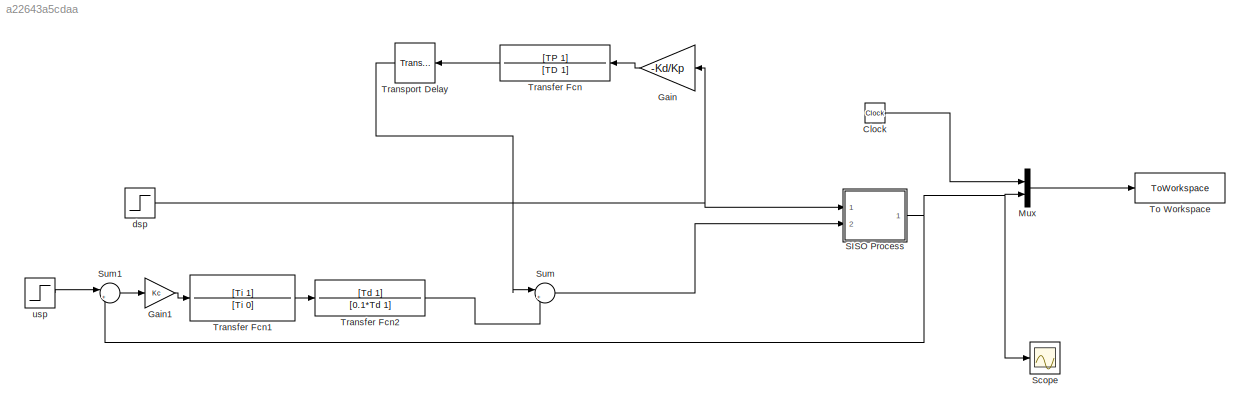
MODEL slx_a22643a5cdaa
KIND model
CONFIG AbsTol = auto
CONFIG EnableMultiTasking = off
CONFIG FixedStep = 0.1
CONFIG MaxStep = auto
CONFIG MinStep = auto
CONFIG RelTol = 1e-3
CONFIG SampleTimeConstraint = Unconstrained
CONFIG SolverName = ode2
CONFIG StartTime = 0.0
CONFIG StopTime = 100
BLOCK [Clock] Clock
BLOCK [Gain] Gain
  Gain = -Kd/Kp
  NameLocation = top
BLOCK [Gain] Gain1
  Gain = Kc
BLOCK [Mux] Mux
  DisplayOption = bar
  Inputs = 2
  Ports = [2, 1]
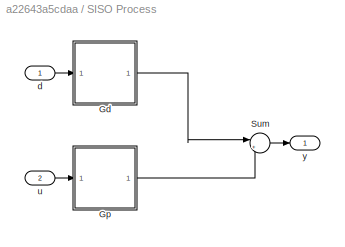
BLOCK [SubSystem] SISO Process
  Ports = [2, 1]
  RequestExecContextInheritance = off
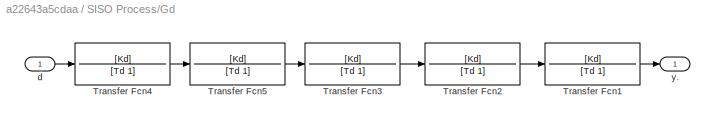
BLOCK [SubSystem] SISO Process/Gd
  Ports = [1, 1]
  RequestExecContextInheritance = off
BLOCK [TransferFcn] SISO Process/Gd/Transfer Fcn1
  Denominator = [Td 1]
  Numerator = [Kd]
BLOCK [TransferFcn] SISO Process/Gd/Transfer Fcn2
  Denominator = [Td 1]
  Numerator = [Kd]
BLOCK [TransferFcn] SISO Process/Gd/Transfer Fcn3
  Denominator = [Td 1]
  Numerator = [Kd]
BLOCK [TransferFcn] SISO Process/Gd/Transfer Fcn4
  Denominator = [Td 1]
  Numerator = [Kd]
BLOCK [TransferFcn] SISO Process/Gd/Transfer Fcn5
  Denominator = [Td 1]
  Numerator = [Kd]
BLOCK [Inport] SISO Process/Gd/d
BLOCK [Outport] SISO Process/Gd/y.
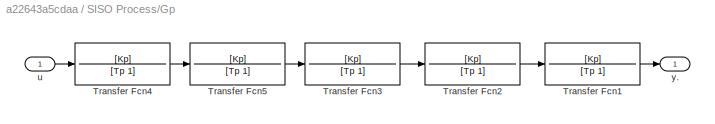
BLOCK [SubSystem] SISO Process/Gp
  Ports = [1, 1]
  RequestExecContextInheritance = off
BLOCK [TransferFcn] SISO Process/Gp/Transfer Fcn1
  Denominator = [Tp 1]
  Numerator = [Kp]
BLOCK [TransferFcn] SISO Process/Gp/Transfer Fcn2
  Denominator = [Tp 1]
  Numerator = [Kp]
BLOCK [TransferFcn] SISO Process/Gp/Transfer Fcn3
  Denominator = [Tp 1]
  Numerator = [Kp]
BLOCK [TransferFcn] SISO Process/Gp/Transfer Fcn4
  Denominator = [Tp 1]
  Numerator = [Kp]
BLOCK [TransferFcn] SISO Process/Gp/Transfer Fcn5
  Denominator = [Tp 1]
  Numerator = [Kp]
BLOCK [Inport] SISO Process/Gp/u
BLOCK [Outport] SISO Process/Gp/y.
BLOCK [Sum] SISO Process/Sum
  Inputs = |++
  Ports = [2, 1]
BLOCK [Inport] SISO Process/d
BLOCK [Inport] SISO Process/u
  Port = 2
BLOCK [Outport] SISO Process/y
BLOCK [Scope] Scope
  Floating = off
  NumInputPorts = 1
  Ports = [1]
  ScopeSpecificationString = Simulink.scopes.TimeScopeBlockCfg('CurrentConfiguration', extmgr.ConfigurationSet(extmgr.Configuration('Core','General UI',true),extmgr.Configuration('Core','Source UI',true),extmgr.Configuration('Sources','WiredSimulink',true),extmgr.Configuration('Visuals','Time Domain',true,'SerializedDisplays',{struct('MinYLimReal','-0.1223','MaxYLimReal','0.06719','YLabelReal','','MinYLimMag','0.00000','MaxYL...<+1328ch>
BLOCK [Sum] Sum
  Inputs = |++
  Ports = [2, 1]
BLOCK [Sum] Sum1
  Inputs = |+-
  Ports = [2, 1]
BLOCK [ToWorkspace] To Workspace
  FixptAsFi = on
  MaxDataPoints = inf
  Ports = [1]
  SampleTime = -1
  VariableName = Y
BLOCK [TransferFcn] Transfer Fcn
  Denominator = [TD 1]
  NameLocation = top
  Numerator = [TP 1]
BLOCK [TransferFcn] Transfer Fcn1
  Denominator = [Ti 0]
  Numerator = [Ti 1]
BLOCK [TransferFcn] Transfer Fcn2
  Denominator = [0.1*Td 1]
  Numerator = [Td 1]
BLOCK [TransportDelay] Transport Delay
  DelayTime = Theta
  NameLocation = top
  Ports = [1, 1]
BLOCK [Step] dsp
  SampleTime = 0
BLOCK [Step] usp
  After = 0
  SampleTime = 0
  Time = 0
LINE Clock:1 -> Mux:1
LINE Gain1:1 -> Transfer Fcn1:1
LINE Gain:1 -> Transfer Fcn:1
LINE Mux:1 -> To Workspace:1
LINE SISO Process/Gd/Transfer Fcn1:1 -> SISO Process/Gd/y.:1
LINE SISO Process/Gd/Transfer Fcn2:1 -> SISO Process/Gd/Transfer Fcn1:1
LINE SISO Process/Gd/Transfer Fcn3:1 -> SISO Process/Gd/Transfer Fcn2:1
LINE SISO Process/Gd/Transfer Fcn4:1 -> SISO Process/Gd/Transfer Fcn5:1
LINE SISO Process/Gd/Transfer Fcn5:1 -> SISO Process/Gd/Transfer Fcn3:1
LINE SISO Process/Gd/d:1 -> SISO Process/Gd/Transfer Fcn4:1
LINE SISO Process/Gd:1 -> SISO Process/Sum:1
LINE SISO Process/Gp/Transfer Fcn1:1 -> SISO Process/Gp/y.:1
LINE SISO Process/Gp/Transfer Fcn2:1 -> SISO Process/Gp/Transfer Fcn1:1
LINE SISO Process/Gp/Transfer Fcn3:1 -> SISO Process/Gp/Transfer Fcn2:1
LINE SISO Process/Gp/Transfer Fcn4:1 -> SISO Process/Gp/Transfer Fcn5:1
LINE SISO Process/Gp/Transfer Fcn5:1 -> SISO Process/Gp/Transfer Fcn3:1
LINE SISO Process/Gp/u:1 -> SISO Process/Gp/Transfer Fcn4:1
LINE SISO Process/Gp:1 -> SISO Process/Sum:2
LINE SISO Process/Sum:1 -> SISO Process/y:1
LINE SISO Process/d:1 -> SISO Process/Gd:1
LINE SISO Process/u:1 -> SISO Process/Gp:1
NET SISO Process:1 -> Mux:2, Scope:1, Sum1:2
LINE Sum1:1 -> Gain1:1
LINE Sum:1 -> SISO Process:2
LINE Transfer Fcn1:1 -> Transfer Fcn2:1
LINE Transfer Fcn2:1 -> Sum:2
LINE Transfer Fcn:1 -> Transport Delay:1
LINE Transport Delay:1 -> Sum:1
NET dsp:1 -> Gain:1, SISO Process:1
LINE usp:1 -> Sum1:1
note: NET lines group one-source signal fan-out (src -> all destinations, sorted); 1:1 wires keep LINE
